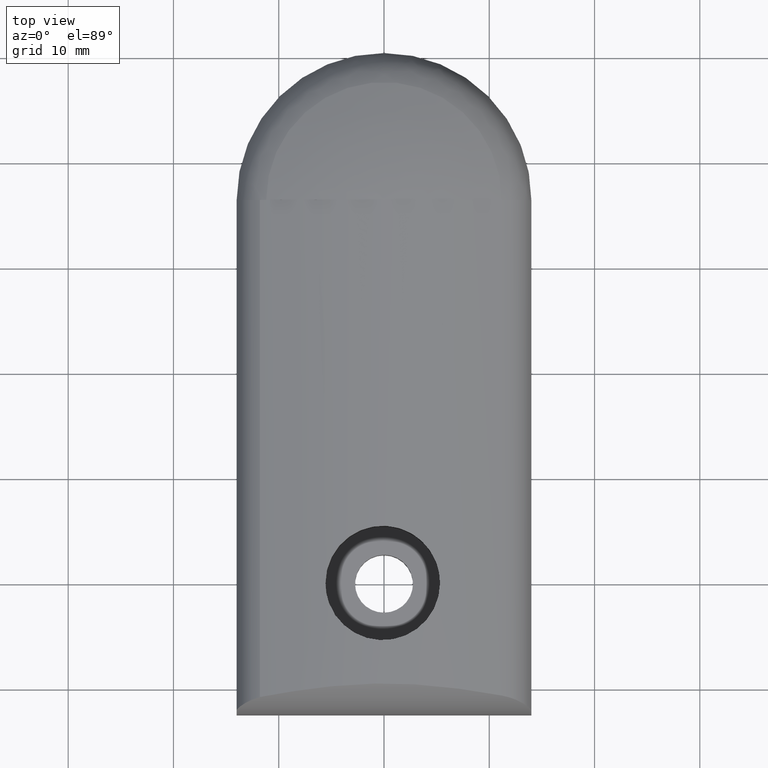
[diagram: clean part render]
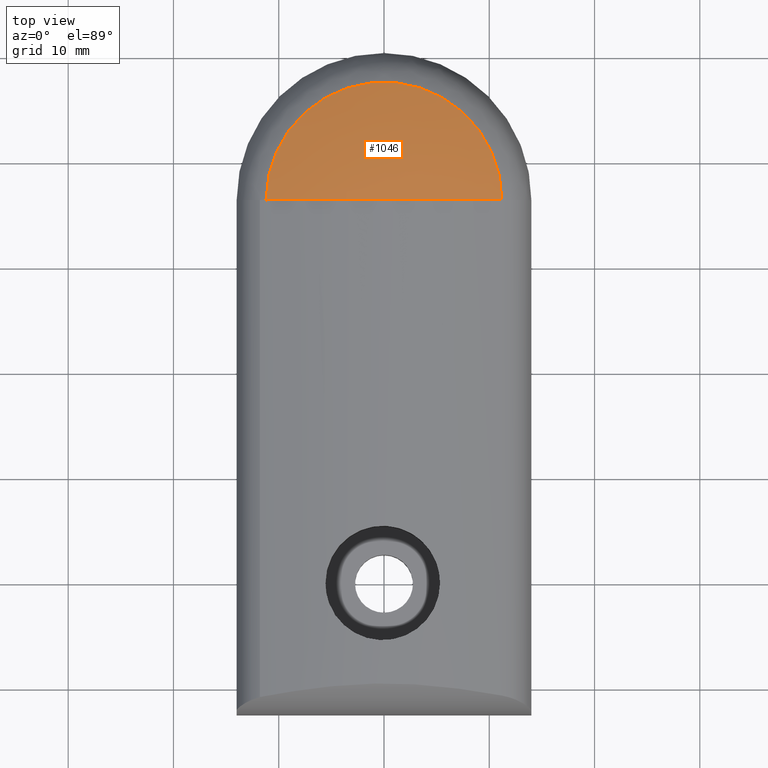
[diagram: same view with one face highlighted and labeled with its STEP entity id]
A machine part, top view. The second image highlights one B-rep face of the part: STEP entity #1046.
In plain terms, the highlighted face is a freeform B-spline surface patch.
Its self-contained STEP definition (entity closure, byte-faithful):
#976=CARTESIAN_POINT('',(-11.189168411753599,36.422453215370922,6.425814368424387));
#977=VERTEX_POINT('',#976);
#985=CARTESIAN_POINT('',(11.189168411753599,36.422453215370808,6.425814368424389));
#986=VERTEX_POINT('',#985);
#987=CARTESIAN_POINT('',(2.563798E-030,36.422453215370865,6.425814368424387));
#988=DIRECTION('',(-1.224647E-016,0.0,1.0));
#989=DIRECTION('',(1.0,-5.080218E-015,1.224647E-016));
#990=AXIS2_PLACEMENT_3D('',#987,#988,#989);
#991=CIRCLE('',#990,11.189168411753599);
#992=EDGE_CURVE('',#986,#977,#991,.T.);
#1004=CARTESIAN_POINT('',(11.189168411753538,36.422453215370808,6.425814368424387));
#1005=CARTESIAN_POINT('',(11.189168411753595,47.611621627124343,6.425814368424387));
#1006=CARTESIAN_POINT('',(5.952069E-014,47.611621627124407,6.425814368424385));
#1007=CARTESIAN_POINT('',(-11.189168411753478,47.611621627124464,6.425814368424385));
#1008=CARTESIAN_POINT('',(-11.189168411753538,36.422453215370929,6.425814368424383));
#1009=CARTESIAN_POINT('',(5.706874994322380,36.422453215370808,8.011060440784735));
#1010=CARTESIAN_POINT('',(5.706874994322437,42.129328209693185,8.011060440784735));
#1011=CARTESIAN_POINT('',(5.810924E-014,42.129328209693242,8.011060440784735));
#1012=CARTESIAN_POINT('',(-5.706874994322321,42.129328209693305,8.011060440784735));
#1013=CARTESIAN_POINT('',(-5.706874994322380,36.422453215370922,8.011060440784735));
#1014=CARTESIAN_POINT('',(-2.287198E-013,36.422453215370808,7.999923838151101));
#1015=CARTESIAN_POINT('',(-2.287198E-013,36.422453215370808,7.999923838151101));
#1016=CARTESIAN_POINT('',(-2.287198E-013,36.422453215370808,7.999923838151101));
#1017=CARTESIAN_POINT('',(-2.287198E-013,36.422453215370808,7.999923838151101));
#1018=CARTESIAN_POINT('',(-2.287198E-013,36.422453215370808,7.999923838151101));
#1026=(BOUNDED_SURFACE()B_SPLINE_SURFACE(2,2,((#1004,#1009,#1014),(#1005,#1010,#1015),(#1006,#1011,#1016),(#1007,#1012,#1017),(#1008,#1013,#1018)),.UNSPECIFIED.,.F.,.F.,.U.)B_SPLINE_SURFACE_WITH_KNOTS((3,2,3),(3,3),(0.0,0.500000000000000,1.0),(0.0,1.0),.UNSPECIFIED.)GEOMETRIC_REPRESENTATION_ITEM()RATIONAL_B_SPLINE_SURFACE(((1.0,0.989975117240227,1.0),(0.707106781186548,0.700018118606512,0.707106781186548),(1.0,0.989975117240227,1.0),(0.707106781186548,0.700018118606512,0.707106781186548),(1.0,0.989975117240227,1.0)))REPRESENTATION_ITEM('')SURFACE());
#1027=CARTESIAN_POINT('',(0.0,36.422453215370808,7.999923838151101));
#1028=VERTEX_POINT('',#1027);
#1029=CARTESIAN_POINT('',(-0.078057300642286,36.422453215370979,-31.999999999999091));
#1030=DIRECTION('',(6.123234E-017,1.0,7.511127E-033));
#1031=DIRECTION('',(0.001951432516063,-1.194908E-019,0.999998095953755));
#1032=AXIS2_PLACEMENT_3D('',#1029,#1030,#1031);
#1033=CIRCLE('',#1032,40.0);
#1034=EDGE_CURVE('',#977,#1028,#1033,.T.);
#1035=ORIENTED_EDGE('',*,*,#1034,.T.);
#1036=CARTESIAN_POINT('',(0.078057300642286,36.422453215370808,-31.999999999999091));
#1037=DIRECTION('',(6.123234E-017,-1.0,7.487053E-033));
#1038=DIRECTION('',(-0.001951432516063,-1.194908E-019,0.999998095953755));
#1039=AXIS2_PLACEMENT_3D('',#1036,#1037,#1038);
#1040=CIRCLE('',#1039,40.0);
#1041=EDGE_CURVE('',#986,#1028,#1040,.T.);
#1042=ORIENTED_EDGE('',*,*,#1041,.F.);
#1043=ORIENTED_EDGE('',*,*,#992,.T.);
#1044=EDGE_LOOP('',(#1035,#1042,#1043));
#1045=FACE_OUTER_BOUND('',#1044,.T.);
#1046=ADVANCED_FACE('',(#1045),#1026,.T.);